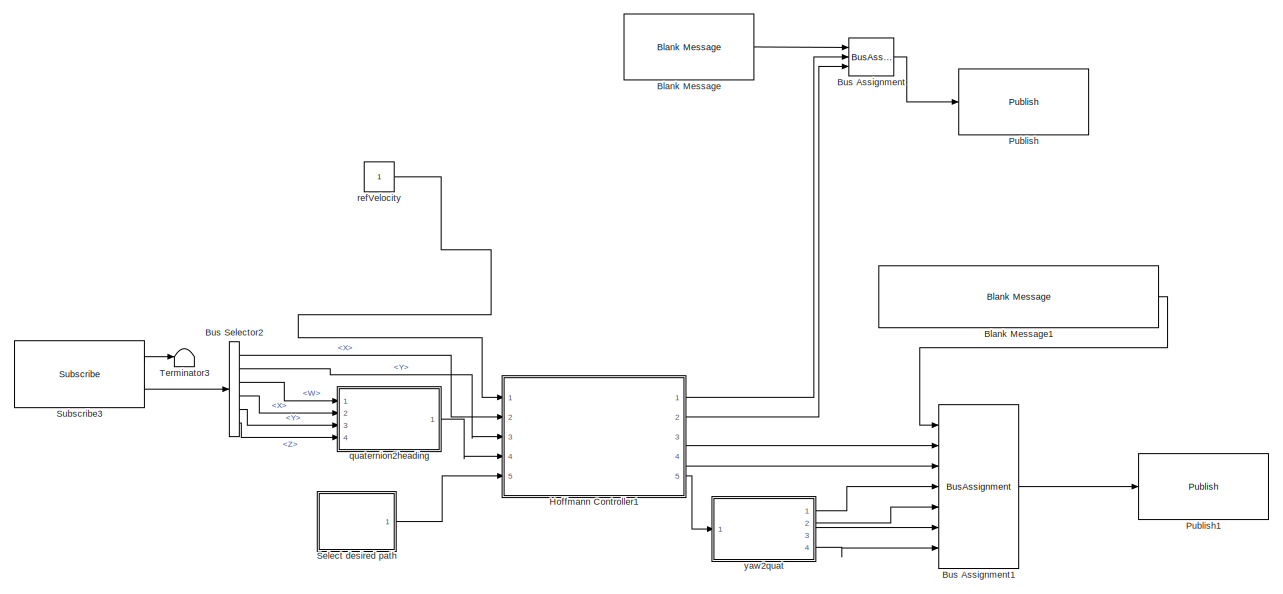
[diagram: root canvas - part 1/2, full width, top band]
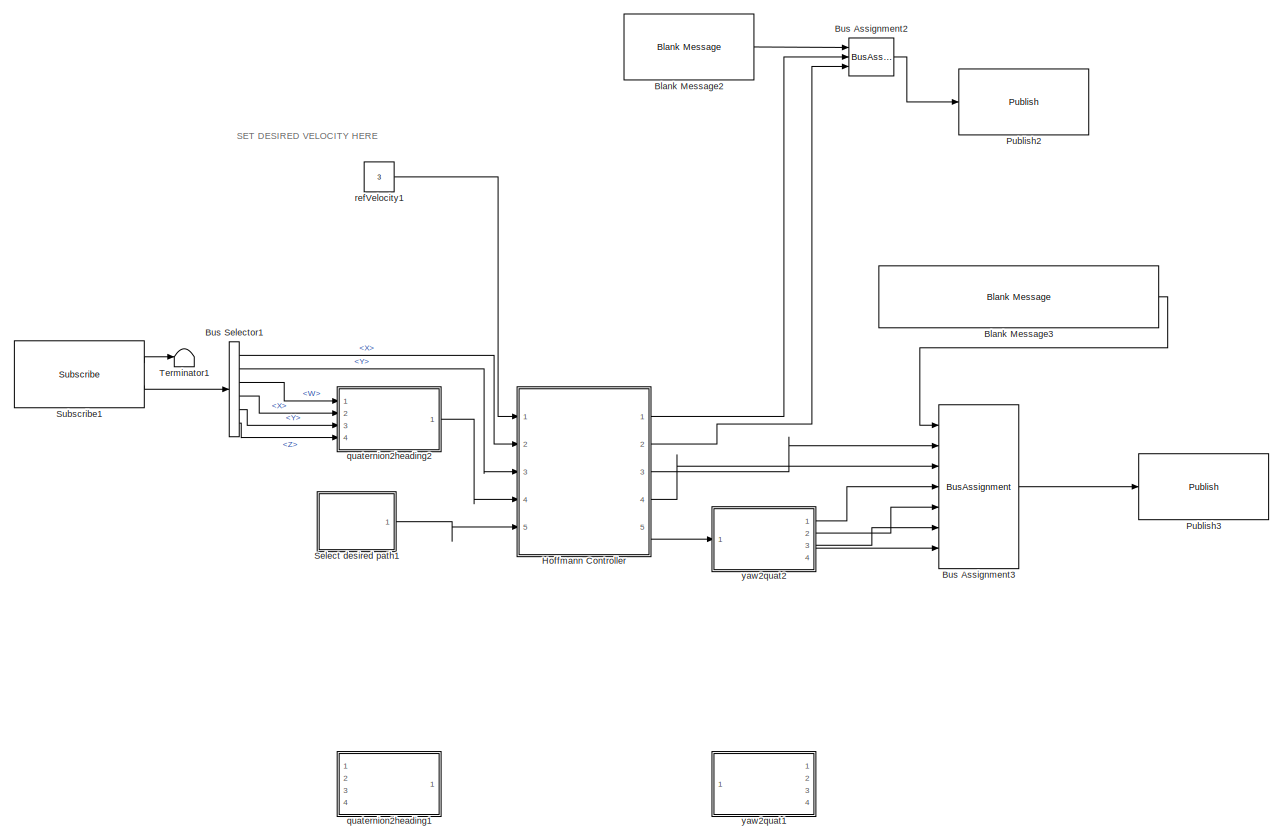
[diagram: root canvas - part 2/2, full width, bottom band]
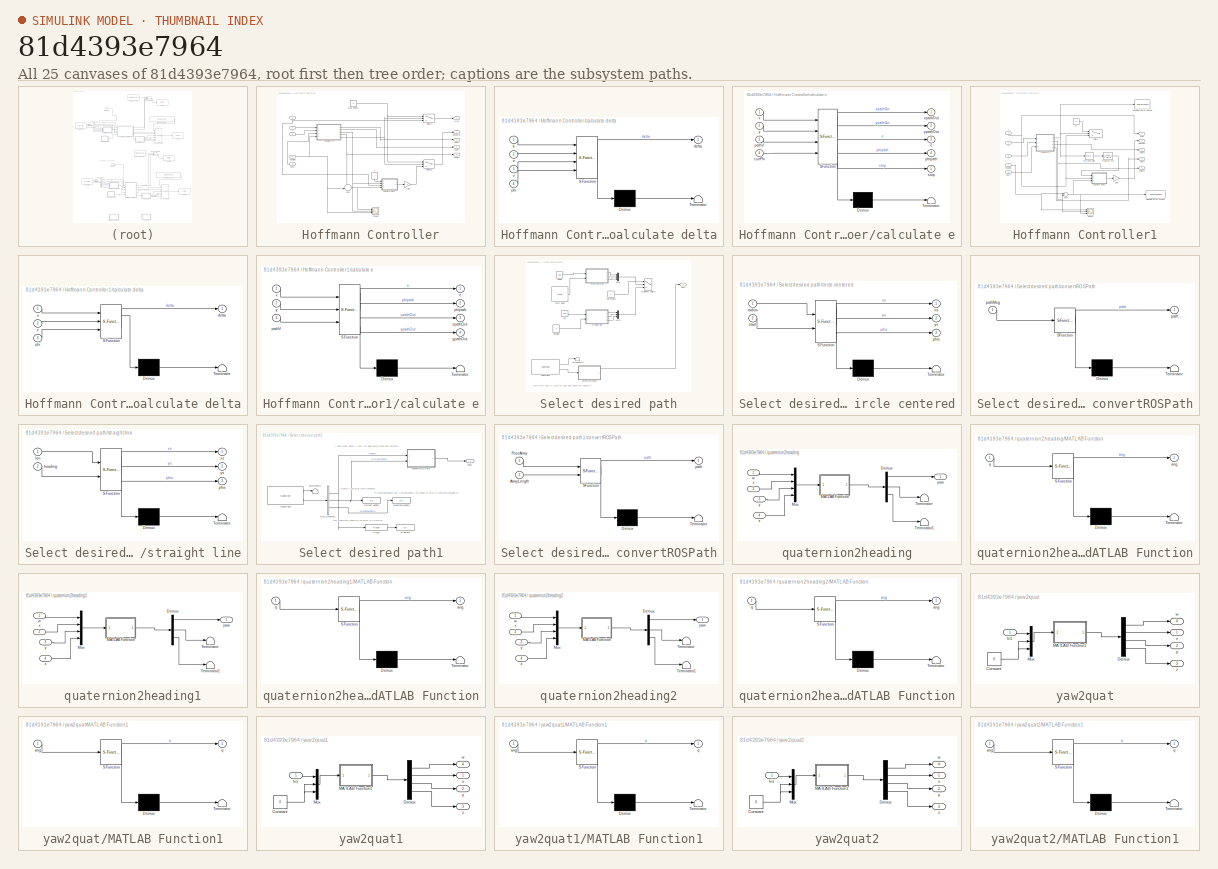
[diagram: thumbnail index - all 25 canvases of the model, root first then tree order]
MODEL slx_81d4393e7964
KIND model
CONFIG AbsTol = auto
CONFIG EnableMultiTasking = on
CONFIG FixedStep = 0.025
CONFIG MaxStep = auto
CONFIG MinStep = auto
CONFIG RelTol = 1e-3
CONFIG SampleTimeConstraint = Unconstrained
CONFIG Solver = FixedStepAuto
CONFIG SolverName = FixedStepAuto
CONFIG StartTime = 0.0
CONFIG StopTime = inf
WORKSPACE source: MAT-file member
WORKSPACE SL_ROS_VariableLengthArrays_MaxSizes: struct (value not decoded)
BLOCK [Reference] Blank Message  REF=robotlib/Blank Message
  Commented = on
  Ports = [0, 1]
  SourceBlock = robotlib/Blank Message
  SourceLibraryInfo = This block requires Robotics System Toolbox
  SourceType = ROS Blank Message
BLOCK [Reference] Blank Message1  REF=robotlib/Blank Message
  Commented = on
  Ports = [0, 1]
  SourceBlock = robotlib/Blank Message
  SourceLibraryInfo = This block requires Robotics System Toolbox
  SourceType = ROS Blank Message
BLOCK [Reference] Blank Message2  REF=robotlib/Blank Message
  Ports = [0, 1]
  SourceBlock = robotlib/Blank Message
  SourceLibraryInfo = This block requires Robotics System Toolbox
  SourceType = ROS Blank Message
BLOCK [Reference] Blank Message3  REF=robotlib/Blank Message
  Commented = on
  Ports = [0, 1]
  SourceBlock = robotlib/Blank Message
  SourceLibraryInfo = This block requires Robotics System Toolbox
  SourceType = ROS Blank Message
BLOCK [BusAssignment] Bus Assignment
  AssignedSignals = Linear.X,Angular.Z
  Commented = on
  Ports = [3, 1]
BLOCK [BusAssignment] Bus Assignment1
  AssignedSignals = Pose.Position.X,Pose.Position.Y,Pose.Orientation.X,Pose.Orientation.Y,Pose.Orientation.Z,Pose.Orientation.W
  Commented = on
  Ports = [7, 1]
BLOCK [BusAssignment] Bus Assignment2
  AssignedSignals = Linear.X,Angular.Z
  Ports = [3, 1]
BLOCK [BusAssignment] Bus Assignment3
  AssignedSignals = Pose.Position.X,Pose.Position.Y,Pose.Orientation.X,Pose.Orientation.Y,Pose.Orientation.Z,Pose.Orientation.W
  Commented = on
  Ports = [7, 1]
BLOCK [BusSelector] Bus Selector1
  OutputSignals = Pose.Pose.Position.X,Pose.Pose.Position.Y,Pose.Pose.Orientation.W,Pose.Pose.Orientation.X,Pose.Pose.Orientation.Y,Pose.Pose.Orientation.Z
  Ports = [1, 6]
BLOCK [BusSelector] Bus Selector2
  Commented = on
  OutputSignals = Pose.Pose.Position.X,Pose.Pose.Position.Y,Pose.Pose.Orientation.W,Pose.Pose.Orientation.X,Pose.Pose.Orientation.Y,Pose.Pose.Orientation.Z
  Ports = [1, 6]
BLOCK [SubSystem] Hoffmann Controller
  Ports = [5, 5]
  RequestExecContextInheritance = off
  Variant = off
BLOCK [Gain] Hoffmann Controller/Gain
  Gain = -1
  OutDataTypeStr = Inherit: Inherit via internal rule
  ParamDataTypeStr = Inherit: Inherit via internal rule
  SaturateOnIntegerOverflow = off
BLOCK [Scope] Hoffmann Controller/Scope
  NumInputPorts = 3
  Ports = [3]
  ScopeSpecificationString = Simulink.scopes.TimeScopeBlockCfg('CurrentConfiguration', extmgr.ConfigurationSet(extmgr.Configuration('Core','General UI',true),extmgr.Configuration('Core','Source UI',true),extmgr.Configuration('Sources','WiredSimulink',true),extmgr.Configuration('Visuals','Time Domain',true,'SerializedDisplays',{struct('MinYLimReal','-2.06685','MaxYLimReal','0.83313','YLabelReal','','MinYLimMag','0.00000','MaxY...<+1764ch>
BLOCK [Sum] Hoffmann Controller/Sum
  IconShape = round
  InputSameDT = off
  Inputs = -|+||
  OutDataTypeStr = Inherit: Inherit via internal rule
  Ports = [2, 1]
  SaturateOnIntegerOverflow = off
BLOCK [Switch] Hoffmann Controller/Switch
  Criteria = u2 ~= 0
  InputSameDT = off
  SaturateOnIntegerOverflow = off
  Threshold = 1000
  ZeroCross = off
BLOCK [Switch] Hoffmann Controller/Switch1
  Criteria = u2 ~= 0
  InputSameDT = off
  SaturateOnIntegerOverflow = off
  Threshold = 1000
  ZeroCross = off
BLOCK [SubSystem] Hoffmann Controller/calculate delta
  ErrorFcn = Stateflow.Translate.translate
  PermitHierarchicalResolution = ExplicitOnly
  Ports = [4, 1]
  RequestExecContextInheritance = off
  SFBlockType = MATLAB Function
  TreatAsAtomicUnit = on
  Variant = off
BLOCK [Demux] Hoffmann Controller/calculate delta/ Demux 
  Outputs = 1
  Ports = [1, 1]
BLOCK [S-Function] Hoffmann Controller/calculate delta/ SFunction 
  EnableBusSupport = on
  FunctionName = sf_sfun
  PortCounts = [4 2]
  Ports = [4, 2]
  SFcnIsStateOwnerBlock = off
  SFunctionDeploymentMode = off
  Tag = Stateflow S-Function hoffmannFollowerWPI 3
BLOCK [Terminator] Hoffmann Controller/calculate delta/ Terminator 
BLOCK [Outport] Hoffmann Controller/calculate delta/delta
  IconDisplay = Port number
BLOCK [Inport] Hoffmann Controller/calculate delta/e
  IconDisplay = Port number
  Port = 2
BLOCK [Inport] Hoffmann Controller/calculate delta/k
  IconDisplay = Port number
BLOCK [Inport] Hoffmann Controller/calculate delta/phi
  IconDisplay = Port number
  Port = 4
BLOCK [Inport] Hoffmann Controller/calculate delta/v
  IconDisplay = Port number
  Port = 3
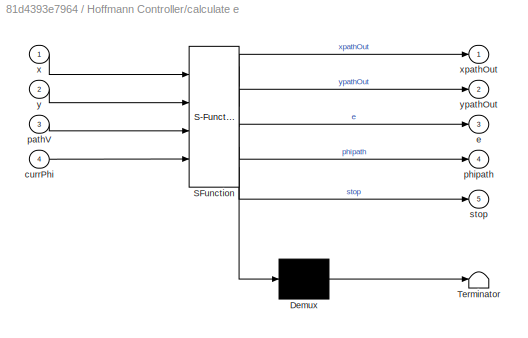
BLOCK [SubSystem] Hoffmann Controller/calculate e
  ErrorFcn = Stateflow.Translate.translate
  PermitHierarchicalResolution = ExplicitOnly
  Ports = [4, 5]
  RequestExecContextInheritance = off
  SFBlockType = MATLAB Function
  TreatAsAtomicUnit = on
  Variant = off
BLOCK [Demux] Hoffmann Controller/calculate e/ Demux 
  Outputs = 1
  Ports = [1, 1]
BLOCK [S-Function] Hoffmann Controller/calculate e/ SFunction 
  EnableBusSupport = on
  FunctionName = sf_sfun
  PortCounts = [4 6]
  Ports = [4, 6]
  SFcnIsStateOwnerBlock = off
  SFunctionDeploymentMode = off
  Tag = Stateflow S-Function hoffmannFollowerWPI 1
BLOCK [Terminator] Hoffmann Controller/calculate e/ Terminator 
BLOCK [Inport] Hoffmann Controller/calculate e/currPhi
  IconDisplay = Port number
  Port = 4
BLOCK [Outport] Hoffmann Controller/calculate e/e
  IconDisplay = Port number
  Port = 3
BLOCK [Inport] Hoffmann Controller/calculate e/pathV
  IconDisplay = Port number
  Port = 3
BLOCK [Outport] Hoffmann Controller/calculate e/phipath
  IconDisplay = Port number
  Port = 4
BLOCK [Outport] Hoffmann Controller/calculate e/stop
  IconDisplay = Port number
  Port = 5
BLOCK [Inport] Hoffmann Controller/calculate e/x
  IconDisplay = Port number
BLOCK [Outport] Hoffmann Controller/calculate e/xpathOut
  IconDisplay = Port number
BLOCK [Inport] Hoffmann Controller/calculate e/y
  IconDisplay = Port number
  Port = 2
BLOCK [Outport] Hoffmann Controller/calculate e/ypathOut
  IconDisplay = Port number
  Port = 2
BLOCK [Outport] Hoffmann Controller/deltaOut
  IconDisplay = Port number
  Port = 2
BLOCK [Inport] Hoffmann Controller/heading
  IconDisplay = Port number
  Port = 4
BLOCK [Constant] Hoffmann Controller/k
  Value = .7
BLOCK [Inport] Hoffmann Controller/path
  IconDisplay = Port number
  Port = 5
BLOCK [Outport] Hoffmann Controller/phipath
  IconDisplay = Port number
  Port = 5
BLOCK [Constant] Hoffmann Controller/stop velocity
  Value = 0
BLOCK [Inport] Hoffmann Controller/v
  IconDisplay = Port number
BLOCK [Outport] Hoffmann Controller/vOut
  IconDisplay = Port number
BLOCK [Inport] Hoffmann Controller/x
  IconDisplay = Port number
  Port = 2
BLOCK [Outport] Hoffmann Controller/xpath
  IconDisplay = Port number
  Port = 3
BLOCK [Inport] Hoffmann Controller/y
  IconDisplay = Port number
  Port = 3
BLOCK [Outport] Hoffmann Controller/ypath
  IconDisplay = Port number
  Port = 4
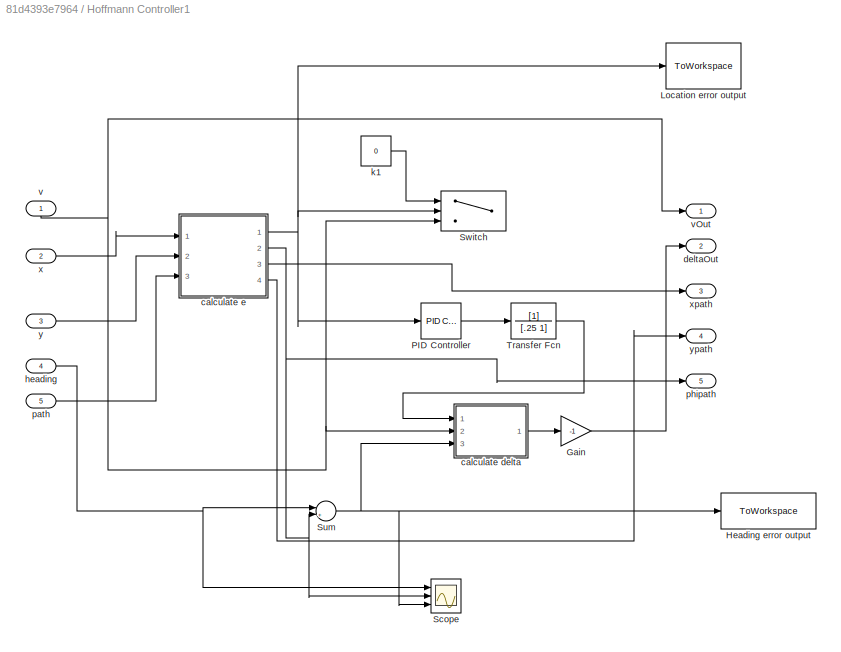
BLOCK [SubSystem] Hoffmann Controller1
  Commented = on
  Ports = [5, 5]
  RequestExecContextInheritance = off
  Variant = off
BLOCK [Gain] Hoffmann Controller1/Gain
  Gain = -1
  OutDataTypeStr = Inherit: Inherit via internal rule
  ParamDataTypeStr = Inherit: Inherit via internal rule
  SaturateOnIntegerOverflow = off
BLOCK [ToWorkspace] Hoffmann Controller1/Heading error output
  FixptAsFi = on
  MaxDataPoints = inf
  Ports = [1]
  SampleTime = -1
  Save2DSignal = 2-D array (concatenate along first dimension)
  SaveFormat = Structure With Time
  VariableName = headingError
BLOCK [ToWorkspace] Hoffmann Controller1/Location error output 
  FixptAsFi = on
  MaxDataPoints = inf
  Ports = [1]
  SampleTime = -1
  Save2DSignal = 2-D array (concatenate along first dimension)
  SaveFormat = Structure With Time
  VariableName = locationError
BLOCK [Reference] Hoffmann Controller1/PID Controller  REF=simulink/Continuous/PID Controller
  Ports = [1, 1]
  SourceBlock = simulink/Continuous/PID Controller
  SourceType = PID 1dof
BLOCK [Scope] Hoffmann Controller1/Scope
  NumInputPorts = 3
  Ports = [3]
  ScopeSpecificationString = Simulink.scopes.TimeScopeBlockCfg('CurrentConfiguration', extmgr.ConfigurationSet(extmgr.Configuration('Core','General UI',true),extmgr.Configuration('Core','Source UI',true),extmgr.Configuration('Sources','WiredSimulink',true,'DataLoggingVariableName','ScopeData1','DataLoggingLimitDataPoints',true,'DataLoggingSaveFormat','Array','DataLoggingDecimation','1','DataLoggingDecimateData',true),extmgr.C...<+1546ch>
BLOCK [Sum] Hoffmann Controller1/Sum
  IconShape = round
  InputSameDT = off
  Inputs = |+-
  OutDataTypeStr = Inherit: Inherit via internal rule
  Ports = [2, 1]
  SaturateOnIntegerOverflow = off
BLOCK [Switch] Hoffmann Controller1/Switch
  Commented = on
  Criteria = u2 > Threshold
  InputSameDT = off
  SaturateOnIntegerOverflow = off
  Threshold = 100000
BLOCK [TransferFcn] Hoffmann Controller1/Transfer Fcn
  Denominator = [.25 1]
BLOCK [SubSystem] Hoffmann Controller1/calculate delta
  ErrorFcn = Stateflow.Translate.translate
  PermitHierarchicalResolution = ExplicitOnly
  Ports = [3, 1]
  RequestExecContextInheritance = off
  SFBlockType = MATLAB Function
  TreatAsAtomicUnit = on
  Variant = off
BLOCK [Demux] Hoffmann Controller1/calculate delta/ Demux 
  Outputs = 1
  Ports = [1, 1]
BLOCK [S-Function] Hoffmann Controller1/calculate delta/ SFunction 
  EnableBusSupport = on
  FunctionName = sf_sfun
  PortCounts = [3 2]
  Ports = [3, 2]
  SFcnIsStateOwnerBlock = off
  SFunctionDeploymentMode = off
  Tag = Stateflow S-Function hoffmannFollowerWPI 8
BLOCK [Terminator] Hoffmann Controller1/calculate delta/ Terminator 
BLOCK [Outport] Hoffmann Controller1/calculate delta/delta
  IconDisplay = Port number
BLOCK [Inport] Hoffmann Controller1/calculate delta/phi
  IconDisplay = Port number
  Port = 3
BLOCK [Inport] Hoffmann Controller1/calculate delta/u
  IconDisplay = Port number
BLOCK [Inport] Hoffmann Controller1/calculate delta/v
  IconDisplay = Port number
  Port = 2
BLOCK [SubSystem] Hoffmann Controller1/calculate e
  ErrorFcn = Stateflow.Translate.translate
  PermitHierarchicalResolution = ExplicitOnly
  Ports = [3, 4]
  RequestExecContextInheritance = off
  SFBlockType = MATLAB Function
  TreatAsAtomicUnit = on
  Variant = off
BLOCK [Demux] Hoffmann Controller1/calculate e/ Demux 
  Outputs = 1
  Ports = [1, 1]
BLOCK [S-Function] Hoffmann Controller1/calculate e/ SFunction 
  EnableBusSupport = on
  FunctionName = sf_sfun
  PortCounts = [3 5]
  Ports = [3, 5]
  SFcnIsStateOwnerBlock = off
  SFunctionDeploymentMode = off
  Tag = Stateflow S-Function hoffmannFollowerWPI 9
BLOCK [Terminator] Hoffmann Controller1/calculate e/ Terminator 
BLOCK [Outport] Hoffmann Controller1/calculate e/e
  IconDisplay = Port number
BLOCK [Inport] Hoffmann Controller1/calculate e/pathV
  IconDisplay = Port number
  Port = 3
BLOCK [Outport] Hoffmann Controller1/calculate e/phipath
  IconDisplay = Port number
  Port = 2
BLOCK [Inport] Hoffmann Controller1/calculate e/x
  IconDisplay = Port number
BLOCK [Outport] Hoffmann Controller1/calculate e/xpathOut
  IconDisplay = Port number
  Port = 3
BLOCK [Inport] Hoffmann Controller1/calculate e/y
  IconDisplay = Port number
  Port = 2
BLOCK [Outport] Hoffmann Controller1/calculate e/ypathOut
  IconDisplay = Port number
  Port = 4
BLOCK [Outport] Hoffmann Controller1/deltaOut
  IconDisplay = Port number
  Port = 2
BLOCK [Inport] Hoffmann Controller1/heading
  IconDisplay = Port number
  Port = 4
BLOCK [Constant] Hoffmann Controller1/k1
  Commented = on
  Value = 0
BLOCK [Inport] Hoffmann Controller1/path
  IconDisplay = Port number
  Port = 5
BLOCK [Outport] Hoffmann Controller1/phipath
  IconDisplay = Port number
  Port = 5
BLOCK [Inport] Hoffmann Controller1/v
  IconDisplay = Port number
BLOCK [Outport] Hoffmann Controller1/vOut
  IconDisplay = Port number
BLOCK [Inport] Hoffmann Controller1/x
  IconDisplay = Port number
  Port = 2
BLOCK [Outport] Hoffmann Controller1/xpath
  IconDisplay = Port number
  Port = 3
BLOCK [Inport] Hoffmann Controller1/y
  IconDisplay = Port number
  Port = 3
BLOCK [Outport] Hoffmann Controller1/ypath
  IconDisplay = Port number
  Port = 4
BLOCK [Reference] Publish  REF=robotlib/Publish
  Commented = on
  Ports = [1]
  SourceBlock = robotlib/Publish
  SourceLibraryInfo = This block requires Robotics System Toolbox
  SourceType = ROS Publish
BLOCK [Reference] Publish1  REF=robotlib/Publish
  Commented = on
  Ports = [1]
  SourceBlock = robotlib/Publish
  SourceLibraryInfo = This block requires Robotics System Toolbox
  SourceType = ROS Publish
BLOCK [Reference] Publish2  REF=robotlib/Publish
  Ports = [1]
  SourceBlock = robotlib/Publish
  SourceLibraryInfo = This block requires Robotics System Toolbox
  SourceType = ROS Publish
BLOCK [Reference] Publish3  REF=robotlib/Publish
  Commented = on
  Ports = [1]
  SourceBlock = robotlib/Publish
  SourceLibraryInfo = This block requires Robotics System Toolbox
  SourceType = ROS Publish
BLOCK [SubSystem] Select desired path
  Commented = on
  Ports = [0, 1]
  RequestExecContextInheritance = off
  Variant = off
BLOCK [MultiPortSwitch] Select desired path/Multiport Switch
  Commented = on
  InputSameDT = off
  Inputs = 2
  Ports = [3, 1]
  SaturateOnIntegerOverflow = off
BLOCK [Mux] Select desired path/Mux
  Commented = on
  DisplayOption = bar
  Inputs = 3
  Ports = [3, 1]
BLOCK [Mux] Select desired path/Mux2
  Commented = on
  DisplayOption = bar
  Inputs = 3
  Ports = [3, 1]
BLOCK [Reference] Select desired path/Subscribe1  REF=robotlib/Subscribe
  Ports = [0, 2]
  SourceBlock = robotlib/Subscribe
  SourceLibraryInfo = This block requires Robotics System Toolbox
  SourceType = ROS Subscribe
BLOCK [Terminator] Select desired path/Terminator3
BLOCK [SubSystem] Select desired path/circle centered
  Commented = on
  ErrorFcn = Stateflow.Translate.translate
  PermitHierarchicalResolution = ExplicitOnly
  Ports = [2, 3]
  RequestExecContextInheritance = off
  SFBlockType = MATLAB Function
  TreatAsAtomicUnit = on
  Variant = off
BLOCK [Demux] Select desired path/circle centered/ Demux 
  Outputs = 1
  Ports = [1, 1]
BLOCK [S-Function] Select desired path/circle centered/ SFunction 
  EnableBusSupport = on
  FunctionName = sf_sfun
  PortCounts = [2 4]
  Ports = [2, 4]
  SFcnIsStateOwnerBlock = off
  SFunctionDeploymentMode = off
  Tag = Stateflow S-Function hoffmannFollowerWPI 4
BLOCK [Terminator] Select desired path/circle centered/ Terminator 
BLOCK [Outport] Select desired path/circle centered/phis
  IconDisplay = Port number
  Port = 3
BLOCK [Inport] Select desired path/circle centered/radius
  IconDisplay = Port number
BLOCK [Inport] Select desired path/circle centered/start
  IconDisplay = Port number
  Port = 2
BLOCK [Outport] Select desired path/circle centered/xs
  IconDisplay = Port number
BLOCK [Outport] Select desired path/circle centered/ys
  IconDisplay = Port number
  Port = 2
BLOCK [SubSystem] Select desired path/convertROSPath
  ErrorFcn = Stateflow.Translate.translate
  PermitHierarchicalResolution = ExplicitOnly
  Ports = [1, 1]
  RequestExecContextInheritance = off
  SFBlockType = MATLAB Function
  TreatAsAtomicUnit = on
  Variant = off
BLOCK [Demux] Select desired path/convertROSPath/ Demux 
  Outputs = 1
  Ports = [1, 1]
BLOCK [S-Function] Select desired path/convertROSPath/ SFunction 
  EnableBusSupport = on
  FunctionName = sf_sfun
  PortCounts = [1 2]
  Ports = [1, 2]
  SFcnIsStateOwnerBlock = off
  SFunctionDeploymentMode = off
  Tag = Stateflow S-Function hoffmannFollowerWPI 6
BLOCK [Terminator] Select desired path/convertROSPath/ Terminator 
BLOCK [Outport] Select desired path/convertROSPath/path
  IconDisplay = Port number
BLOCK [Inport] Select desired path/convertROSPath/pathMsg
  IconDisplay = Port number
BLOCK [Constant] Select desired path/heading
  Commented = on
  Value = 0
BLOCK [Constant] Select desired path/len
  Commented = on
  Value = 36.6
BLOCK [Outport] Select desired path/path
  IconDisplay = Port number
BLOCK [Constant] Select desired path/pathChoice 
  Commented = on
BLOCK [Constant] Select desired path/radius
  Commented = on
  Value = 36.6
BLOCK [Constant] Select desired path/start point
  Commented = on
  Value = [0 0]
BLOCK [SubSystem] Select desired path/straight line
  Commented = on
  ErrorFcn = Stateflow.Translate.translate
  PermitHierarchicalResolution = ExplicitOnly
  Ports = [2, 3]
  RequestExecContextInheritance = off
  SFBlockType = MATLAB Function
  TreatAsAtomicUnit = on
  Variant = off
BLOCK [Demux] Select desired path/straight line/ Demux 
  Outputs = 1
  Ports = [1, 1]
BLOCK [S-Function] Select desired path/straight line/ SFunction 
  EnableBusSupport = on
  FunctionName = sf_sfun
  PortCounts = [2 4]
  Ports = [2, 4]
  SFcnIsStateOwnerBlock = off
  SFunctionDeploymentMode = off
  Tag = Stateflow S-Function hoffmannFollowerWPI 5
BLOCK [Terminator] Select desired path/straight line/ Terminator 
BLOCK [Inport] Select desired path/straight line/heading
  IconDisplay = Port number
  Port = 2
BLOCK [Inport] Select desired path/straight line/len
  IconDisplay = Port number
BLOCK [Outport] Select desired path/straight line/phis
  IconDisplay = Port number
  Port = 3
BLOCK [Outport] Select desired path/straight line/xs
  IconDisplay = Port number
BLOCK [Outport] Select desired path/straight line/ys
  IconDisplay = Port number
  Port = 2
BLOCK [SubSystem] Select desired path1
  Ports = [0, 1]
  RequestExecContextInheritance = off
  Variant = off
BLOCK [BusSelector] Select desired path1/Bus Selector1
  OutputSignals = Poses,Poses_SL_Info.CurrentLength,Poses_SL_Info.ReceivedLength
  Ports = [1, 3]
BLOCK [Display] Select desired path1/Current Length
  Commented = on
  Decimation = 1
  Ports = [1]
BLOCK [Display] Select desired path1/Display3
  Commented = on
  Decimation = 1
  Ports = [1]
BLOCK [Probe] Select desired path1/Probe
  Commented = on
  Ports = [1, 1]
  ProbeComplexSignal = off
  ProbeSampleTime = off
  ProbeSignalDimensions = on
  ProbeWidth = off
BLOCK [Display] Select desired path1/Received Length
  Commented = on
  Decimation = 1
  Ports = [1]
BLOCK [Reference] Select desired path1/Subscribe2  REF=robotlib/Subscribe
  Ports = [0, 2]
  SourceBlock = robotlib/Subscribe
  SourceLibraryInfo = This block requires Robotics System Toolbox
  SourceType = ROS Subscribe
BLOCK [Terminator] Select desired path1/Terminator1
BLOCK [SubSystem] Select desired path1/convertROSPath
  ErrorFcn = Stateflow.Translate.translate
  PermitHierarchicalResolution = ExplicitOnly
  Ports = [2, 1]
  RequestExecContextInheritance = off
  SFBlockType = MATLAB Function
  TreatAsAtomicUnit = on
  Variant = off
BLOCK [Demux] Select desired path1/convertROSPath/ Demux 
  Outputs = 1
  Ports = [1, 1]
BLOCK [S-Function] Select desired path1/convertROSPath/ SFunction 
  EnableBusSupport = on
  FunctionName = sf_sfun
  PortCounts = [2 2]
  Ports = [2, 2]
  SFcnIsStateOwnerBlock = off
  SFunctionDeploymentMode = off
  Tag = Stateflow S-Function hoffmannFollowerWPI 13
BLOCK [Terminator] Select desired path1/convertROSPath/ Terminator 
BLOCK [Inport] Select desired path1/convertROSPath/ArrayLength
  IconDisplay = Port number
  Port = 2
BLOCK [Inport] Select desired path1/convertROSPath/PoseArray
  IconDisplay = Port number
BLOCK [Outport] Select desired path1/convertROSPath/path
  IconDisplay = Port number
BLOCK [Outport] Select desired path1/path
  IconDisplay = Port number
BLOCK [Reference] Subscribe1  REF=robotlib/Subscribe
  Ports = [0, 2]
  SourceBlock = robotlib/Subscribe
  SourceLibraryInfo = This block requires Robotics System Toolbox
  SourceType = ROS Subscribe
BLOCK [Reference] Subscribe3  REF=robotlib/Subscribe
  Commented = on
  Ports = [0, 2]
  SourceBlock = robotlib/Subscribe
  SourceLibraryInfo = This block requires Robotics System Toolbox
  SourceType = ROS Subscribe
BLOCK [Terminator] Terminator1
BLOCK [Terminator] Terminator3
  Commented = on
BLOCK [SubSystem] quaternion2heading
  Commented = on
  Ports = [4, 1]
  RequestExecContextInheritance = off
  Variant = off
BLOCK [Demux] quaternion2heading/Demux
  DisplayOption = bar
  Outputs = 3
  Ports = [1, 3]
BLOCK [SubSystem] quaternion2heading/MATLAB Function
  ErrorFcn = Stateflow.Translate.translate
  PermitHierarchicalResolution = ExplicitOnly
  Ports = [1, 1]
  RequestExecContextInheritance = off
  SFBlockType = MATLAB Function
  TreatAsAtomicUnit = on
  Variant = off
BLOCK [Demux] quaternion2heading/MATLAB Function/ Demux 
  Outputs = 1
  Ports = [1, 1]
BLOCK [S-Function] quaternion2heading/MATLAB Function/ SFunction 
  EnableBusSupport = on
  FunctionName = sf_sfun
  PortCounts = [1 2]
  Ports = [1, 2]
  SFcnIsStateOwnerBlock = off
  SFunctionDeploymentMode = off
  Tag = Stateflow S-Function hoffmannFollowerWPI 2
BLOCK [Terminator] quaternion2heading/MATLAB Function/ Terminator 
BLOCK [Outport] quaternion2heading/MATLAB Function/ang
  IconDisplay = Port number
BLOCK [Inport] quaternion2heading/MATLAB Function/q
  IconDisplay = Port number
BLOCK [Mux] quaternion2heading/Mux
  DisplayOption = bar
  Ports = [4, 1]
BLOCK [Terminator] quaternion2heading/Terminator
BLOCK [Terminator] quaternion2heading/Terminator1
BLOCK [Inport] quaternion2heading/w
  IconDisplay = Port number
BLOCK [Inport] quaternion2heading/x
  IconDisplay = Port number
  Port = 2
BLOCK [Inport] quaternion2heading/y
  IconDisplay = Port number
  Port = 3
BLOCK [Outport] quaternion2heading/yaw
  IconDisplay = Port number
BLOCK [Inport] quaternion2heading/z
  IconDisplay = Port number
  Port = 4
BLOCK [SubSystem] quaternion2heading1
  Commented = on
  Ports = [4, 1]
  RequestExecContextInheritance = off
  Variant = off
BLOCK [Demux] quaternion2heading1/Demux
  DisplayOption = bar
  Outputs = 3
  Ports = [1, 3]
BLOCK [SubSystem] quaternion2heading1/MATLAB Function
  ErrorFcn = Stateflow.Translate.translate
  PermitHierarchicalResolution = ExplicitOnly
  Ports = [1, 1]
  RequestExecContextInheritance = off
  SFBlockType = MATLAB Function
  TreatAsAtomicUnit = on
  Variant = off
BLOCK [Demux] quaternion2heading1/MATLAB Function/ Demux 
  Outputs = 1
  Ports = [1, 1]
BLOCK [S-Function] quaternion2heading1/MATLAB Function/ SFunction 
  EnableBusSupport = on
  FunctionName = sf_sfun
  PortCounts = [1 2]
  Ports = [1, 2]
  SFcnIsStateOwnerBlock = off
  SFunctionDeploymentMode = off
  Tag = Stateflow S-Function hoffmannFollowerWPI 15
BLOCK [Terminator] quaternion2heading1/MATLAB Function/ Terminator 
BLOCK [Outport] quaternion2heading1/MATLAB Function/ang
  IconDisplay = Port number
BLOCK [Inport] quaternion2heading1/MATLAB Function/q
  IconDisplay = Port number
BLOCK [Mux] quaternion2heading1/Mux
  DisplayOption = bar
  Ports = [4, 1]
BLOCK [Terminator] quaternion2heading1/Terminator
BLOCK [Terminator] quaternion2heading1/Terminator1
BLOCK [Inport] quaternion2heading1/w
  IconDisplay = Port number
BLOCK [Inport] quaternion2heading1/x
  IconDisplay = Port number
  Port = 2
BLOCK [Inport] quaternion2heading1/y
  IconDisplay = Port number
  Port = 3
BLOCK [Outport] quaternion2heading1/yaw
  IconDisplay = Port number
BLOCK [Inport] quaternion2heading1/z
  IconDisplay = Port number
  Port = 4
BLOCK [SubSystem] quaternion2heading2
  Ports = [4, 1]
  RequestExecContextInheritance = off
  Variant = off
BLOCK [Demux] quaternion2heading2/Demux
  DisplayOption = bar
  Outputs = 3
  Ports = [1, 3]
BLOCK [SubSystem] quaternion2heading2/MATLAB Function
  ErrorFcn = Stateflow.Translate.translate
  PermitHierarchicalResolution = ExplicitOnly
  Ports = [1, 1]
  RequestExecContextInheritance = off
  SFBlockType = MATLAB Function
  TreatAsAtomicUnit = on
  Variant = off
BLOCK [Demux] quaternion2heading2/MATLAB Function/ Demux 
  Outputs = 1
  Ports = [1, 1]
BLOCK [S-Function] quaternion2heading2/MATLAB Function/ SFunction 
  EnableBusSupport = on
  FunctionName = sf_sfun
  PortCounts = [1 2]
  Ports = [1, 2]
  SFcnIsStateOwnerBlock = off
  SFunctionDeploymentMode = off
  Tag = Stateflow S-Function hoffmannFollowerWPI 10
BLOCK [Terminator] quaternion2heading2/MATLAB Function/ Terminator 
BLOCK [Outport] quaternion2heading2/MATLAB Function/ang
  IconDisplay = Port number
BLOCK [Inport] quaternion2heading2/MATLAB Function/q
  IconDisplay = Port number
BLOCK [Mux] quaternion2heading2/Mux
  DisplayOption = bar
  Ports = [4, 1]
BLOCK [Terminator] quaternion2heading2/Terminator
BLOCK [Terminator] quaternion2heading2/Terminator1
BLOCK [Inport] quaternion2heading2/w
  IconDisplay = Port number
BLOCK [Inport] quaternion2heading2/x
  IconDisplay = Port number
  Port = 2
BLOCK [Inport] quaternion2heading2/y
  IconDisplay = Port number
  Port = 3
BLOCK [Outport] quaternion2heading2/yaw
  IconDisplay = Port number
BLOCK [Inport] quaternion2heading2/z
  IconDisplay = Port number
  Port = 4
BLOCK [Constant] refVelocity
  Commented = on
BLOCK [Constant] refVelocity1
  Value = 3
BLOCK [SubSystem] yaw2quat
  Commented = on
  Ports = [1, 4]
  RequestExecContextInheritance = off
  Variant = off
BLOCK [Constant] yaw2quat/Constant
  Value = 0
BLOCK [Demux] yaw2quat/Demux
  DisplayOption = bar
  Ports = [1, 4]
BLOCK [Inport] yaw2quat/In1
  IconDisplay = Port number
BLOCK [SubSystem] yaw2quat/MATLAB Function1
  ErrorFcn = Stateflow.Translate.translate
  PermitHierarchicalResolution = ExplicitOnly
  Ports = [1, 1]
  RequestExecContextInheritance = off
  SFBlockType = MATLAB Function
  TreatAsAtomicUnit = on
  Variant = off
BLOCK [Demux] yaw2quat/MATLAB Function1/ Demux 
  Outputs = 1
  Ports = [1, 1]
BLOCK [S-Function] yaw2quat/MATLAB Function1/ SFunction 
  EnableBusSupport = on
  FunctionName = sf_sfun
  PortCounts = [1 2]
  Ports = [1, 2]
  SFcnIsStateOwnerBlock = off
  SFunctionDeploymentMode = off
  Tag = Stateflow S-Function hoffmannFollowerWPI 7
BLOCK [Terminator] yaw2quat/MATLAB Function1/ Terminator 
BLOCK [Inport] yaw2quat/MATLAB Function1/ang
  IconDisplay = Port number
BLOCK [Outport] yaw2quat/MATLAB Function1/q
  IconDisplay = Port number
BLOCK [Mux] yaw2quat/Mux
  DisplayOption = bar
  Inputs = 3
  Ports = [3, 1]
BLOCK [Outport] yaw2quat/w
  IconDisplay = Port number
  Port = 4
BLOCK [Outport] yaw2quat/x
  IconDisplay = Port number
BLOCK [Outport] yaw2quat/y
  IconDisplay = Port number
  Port = 2
BLOCK [Outport] yaw2quat/z
  IconDisplay = Port number
  Port = 3
BLOCK [SubSystem] yaw2quat1
  Commented = on
  Ports = [1, 4]
  RequestExecContextInheritance = off
  Variant = off
BLOCK [Constant] yaw2quat1/Constant
  Value = 0
BLOCK [Demux] yaw2quat1/Demux
  DisplayOption = bar
  Ports = [1, 4]
BLOCK [Inport] yaw2quat1/In1
  IconDisplay = Port number
BLOCK [SubSystem] yaw2quat1/MATLAB Function1
  ErrorFcn = Stateflow.Translate.translate
  PermitHierarchicalResolution = ExplicitOnly
  Ports = [1, 1]
  RequestExecContextInheritance = off
  SFBlockType = MATLAB Function
  TreatAsAtomicUnit = on
  Variant = off
BLOCK [Demux] yaw2quat1/MATLAB Function1/ Demux 
  Outputs = 1
  Ports = [1, 1]
BLOCK [S-Function] yaw2quat1/MATLAB Function1/ SFunction 
  EnableBusSupport = on
  FunctionName = sf_sfun
  PortCounts = [1 2]
  Ports = [1, 2]
  SFcnIsStateOwnerBlock = off
  SFunctionDeploymentMode = off
  Tag = Stateflow S-Function hoffmannFollowerWPI 16
BLOCK [Terminator] yaw2quat1/MATLAB Function1/ Terminator 
BLOCK [Inport] yaw2quat1/MATLAB Function1/ang
  IconDisplay = Port number
BLOCK [Outport] yaw2quat1/MATLAB Function1/q
  IconDisplay = Port number
BLOCK [Mux] yaw2quat1/Mux
  DisplayOption = bar
  Inputs = 3
  Ports = [3, 1]
BLOCK [Outport] yaw2quat1/w
  IconDisplay = Port number
  Port = 4
BLOCK [Outport] yaw2quat1/x
  IconDisplay = Port number
BLOCK [Outport] yaw2quat1/y
  IconDisplay = Port number
  Port = 2
BLOCK [Outport] yaw2quat1/z
  IconDisplay = Port number
  Port = 3
BLOCK [SubSystem] yaw2quat2
  Commented = on
  Ports = [1, 4]
  RequestExecContextInheritance = off
  Variant = off
BLOCK [Constant] yaw2quat2/Constant
  Value = 0
BLOCK [Demux] yaw2quat2/Demux
  DisplayOption = bar
  Ports = [1, 4]
BLOCK [Inport] yaw2quat2/In1
  IconDisplay = Port number
BLOCK [SubSystem] yaw2quat2/MATLAB Function1
  ErrorFcn = Stateflow.Translate.translate
  PermitHierarchicalResolution = ExplicitOnly
  Ports = [1, 1]
  RequestExecContextInheritance = off
  SFBlockType = MATLAB Function
  TreatAsAtomicUnit = on
  Variant = off
BLOCK [Demux] yaw2quat2/MATLAB Function1/ Demux 
  Outputs = 1
  Ports = [1, 1]
BLOCK [S-Function] yaw2quat2/MATLAB Function1/ SFunction 
  EnableBusSupport = on
  FunctionName = sf_sfun
  PortCounts = [1 2]
  Ports = [1, 2]
  SFcnIsStateOwnerBlock = off
  SFunctionDeploymentMode = off
  Tag = Stateflow S-Function hoffmannFollowerWPI 11
BLOCK [Terminator] yaw2quat2/MATLAB Function1/ Terminator 
BLOCK [Inport] yaw2quat2/MATLAB Function1/ang
  IconDisplay = Port number
BLOCK [Outport] yaw2quat2/MATLAB Function1/q
  IconDisplay = Port number
BLOCK [Mux] yaw2quat2/Mux
  DisplayOption = bar
  Inputs = 3
  Ports = [3, 1]
BLOCK [Outport] yaw2quat2/w
  IconDisplay = Port number
  Port = 4
BLOCK [Outport] yaw2quat2/x
  IconDisplay = Port number
BLOCK [Outport] yaw2quat2/y
  IconDisplay = Port number
  Port = 2
BLOCK [Outport] yaw2quat2/z
  IconDisplay = Port number
  Port = 3
ANNOTATION (root): SET DESIRED VELOCITY HERE
ANNOTATION Select desired path: A path must have [x y phi] for each point along the trajectory
ANNOTATION Select desired path1: Check if the array was truncated
ANNOTATION Select desired path1: Get maximum length of the array in Simulink
ANNOTATION Select desired path1: If ReceivedLength > CurrentLength, the length of array in received message was greater than the maximum allowed
ANNOTATION Select desired path1: A path must have [x y phi] for each point along the trajectory
LINE Blank Message1:1 -> Bus Assignment1:1
LINE Blank Message2:1 -> Bus Assignment2:1
LINE Blank Message3:1 -> Bus Assignment3:1
LINE Blank Message:1 -> Bus Assignment:1
LINE Bus Assignment1:1 -> Publish1:1
LINE Bus Assignment2:1 -> Publish2:1
LINE Bus Assignment3:1 -> Publish3:1
LINE Bus Assignment:1 -> Publish:1
LINE Bus Selector1:1 -> Hoffmann Controller:2
LINE Bus Selector1:2 -> Hoffmann Controller:3
LINE Bus Selector1:3 -> quaternion2heading2:1
LINE Bus Selector1:4 -> quaternion2heading2:2
LINE Bus Selector1:5 -> quaternion2heading2:3
LINE Bus Selector1:6 -> quaternion2heading2:4
LINE Bus Selector2:1 -> Hoffmann Controller1:2
LINE Bus Selector2:2 -> Hoffmann Controller1:3
LINE Bus Selector2:3 -> quaternion2heading:1
LINE Bus Selector2:4 -> quaternion2heading:2
LINE Bus Selector2:5 -> quaternion2heading:3
LINE Bus Selector2:6 -> quaternion2heading:4
LINE Hoffmann Controller/Gain:1 -> Hoffmann Controller/Switch1:3
NET Hoffmann Controller/Sum:1 -> Hoffmann Controller/Scope:1, Hoffmann Controller/calculate delta:4
LINE Hoffmann Controller/Switch1:1 -> Hoffmann Controller/deltaOut:1
LINE Hoffmann Controller/Switch:1 -> Hoffmann Controller/vOut:1
LINE Hoffmann Controller/calculate delta:1 -> Hoffmann Controller/Gain:1
LINE Hoffmann Controller/calculate e:1 -> Hoffmann Controller/xpath:1
LINE Hoffmann Controller/calculate e:2 -> Hoffmann Controller/ypath:1
NET Hoffmann Controller/calculate e:3 -> Hoffmann Controller/Scope:2, Hoffmann Controller/calculate delta:2
NET Hoffmann Controller/calculate e:4 -> Hoffmann Controller/Sum:1, Hoffmann Controller/phipath:1
NET Hoffmann Controller/calculate e:5 -> Hoffmann Controller/Switch1:2, Hoffmann Controller/Switch:2
NET Hoffmann Controller/heading:1 -> Hoffmann Controller/Scope:3, Hoffmann Controller/Sum:2, Hoffmann Controller/calculate e:4
LINE Hoffmann Controller/k:1 -> Hoffmann Controller/calculate delta:1
LINE Hoffmann Controller/path:1 -> Hoffmann Controller/calculate e:3
NET Hoffmann Controller/stop velocity:1 -> Hoffmann Controller/Switch1:1, Hoffmann Controller/Switch:1
NET Hoffmann Controller/v:1 -> Hoffmann Controller/Switch:3, Hoffmann Controller/calculate delta:3
LINE Hoffmann Controller/x:1 -> Hoffmann Controller/calculate e:1
LINE Hoffmann Controller/y:1 -> Hoffmann Controller/calculate e:2
LINE Hoffmann Controller1/Gain:1 -> Hoffmann Controller1/deltaOut:1
LINE Hoffmann Controller1/PID Controller:1 -> Hoffmann Controller1/Transfer Fcn:1
NET Hoffmann Controller1/Sum:1 -> Hoffmann Controller1/Heading error output:1, Hoffmann Controller1/Scope:3, Hoffmann Controller1/calculate delta:3
LINE Hoffmann Controller1/Transfer Fcn:1 -> Hoffmann Controller1/calculate delta:1
LINE Hoffmann Controller1/calculate delta:1 -> Hoffmann Controller1/Gain:1
NET Hoffmann Controller1/calculate e:1 -> Hoffmann Controller1/Location error output :1, Hoffmann Controller1/PID Controller:1, Hoffmann Controller1/Switch:2
NET Hoffmann Controller1/calculate e:2 -> Hoffmann Controller1/Scope:2, Hoffmann Controller1/Sum:2, Hoffmann Controller1/phipath:1
LINE Hoffmann Controller1/calculate e:3 -> Hoffmann Controller1/xpath:1
LINE Hoffmann Controller1/calculate e:4 -> Hoffmann Controller1/ypath:1
NET Hoffmann Controller1/heading:1 -> Hoffmann Controller1/Scope:1, Hoffmann Controller1/Sum:1
LINE Hoffmann Controller1/k1:1 -> Hoffmann Controller1/Switch:1
LINE Hoffmann Controller1/path:1 -> Hoffmann Controller1/calculate e:3
NET Hoffmann Controller1/v:1 -> Hoffmann Controller1/Switch:3, Hoffmann Controller1/calculate delta:2, Hoffmann Controller1/vOut:1
LINE Hoffmann Controller1/x:1 -> Hoffmann Controller1/calculate e:1
LINE Hoffmann Controller1/y:1 -> Hoffmann Controller1/calculate e:2
LINE Hoffmann Controller1:1 -> Bus Assignment:2
LINE Hoffmann Controller1:2 -> Bus Assignment:3
LINE Hoffmann Controller1:3 -> Bus Assignment1:2
LINE Hoffmann Controller1:4 -> Bus Assignment1:3
LINE Hoffmann Controller1:5 -> yaw2quat:1
LINE Hoffmann Controller:1 -> Bus Assignment2:2
LINE Hoffmann Controller:2 -> Bus Assignment2:3
LINE Hoffmann Controller:3 -> Bus Assignment3:2
LINE Hoffmann Controller:4 -> Bus Assignment3:3
LINE Hoffmann Controller:5 -> yaw2quat2:1
LINE Select desired path/Mux2:1 -> Select desired path/Multiport Switch:3
LINE Select desired path/Mux:1 -> Select desired path/Multiport Switch:2
LINE Select desired path/Subscribe1:1 -> Select desired path/Terminator3:1
LINE Select desired path/Subscribe1:2 -> Select desired path/convertROSPath:1
LINE Select desired path/circle centered:1 -> Select desired path/Mux:1
LINE Select desired path/circle centered:2 -> Select desired path/Mux:2
LINE Select desired path/circle centered:3 -> Select desired path/Mux:3
LINE Select desired path/convertROSPath:1 -> Select desired path/path:1
LINE Select desired path/heading:1 -> Select desired path/straight line:2
LINE Select desired path/len:1 -> Select desired path/straight line:1
LINE Select desired path/pathChoice :1 -> Select desired path/Multiport Switch:1
LINE Select desired path/radius:1 -> Select desired path/circle centered:1
LINE Select desired path/start point:1 -> Select desired path/circle centered:2
LINE Select desired path/straight line:1 -> Select desired path/Mux2:1
LINE Select desired path/straight line:2 -> Select desired path/Mux2:2
LINE Select desired path/straight line:3 -> Select desired path/Mux2:3
NET Select desired path1/Bus Selector1:1 -> Select desired path1/Probe:1, Select desired path1/convertROSPath:1
NET Select desired path1/Bus Selector1:2 -> Select desired path1/Current Length:1, Select desired path1/convertROSPath:2
LINE Select desired path1/Bus Selector1:3 -> Select desired path1/Received Length:1
LINE Select desired path1/Probe:1 -> Select desired path1/Display3:1
LINE Select desired path1/Subscribe2:1 -> Select desired path1/Terminator1:1
LINE Select desired path1/Subscribe2:2 -> Select desired path1/Bus Selector1:1
LINE Select desired path1/convertROSPath:1 -> Select desired path1/path:1
LINE Select desired path1:1 -> Hoffmann Controller:5
LINE Select desired path:1 -> Hoffmann Controller1:5
LINE Subscribe1:1 -> Terminator1:1
LINE Subscribe1:2 -> Bus Selector1:1
LINE Subscribe3:1 -> Terminator3:1
LINE Subscribe3:2 -> Bus Selector2:1
LINE quaternion2heading/Demux:1 -> quaternion2heading/yaw:1
LINE quaternion2heading/Demux:2 -> quaternion2heading/Terminator:1
LINE quaternion2heading/Demux:3 -> quaternion2heading/Terminator1:1
LINE quaternion2heading/MATLAB Function:1 -> quaternion2heading/Demux:1
LINE quaternion2heading/Mux:1 -> quaternion2heading/MATLAB Function:1
LINE quaternion2heading/w:1 -> quaternion2heading/Mux:1
LINE quaternion2heading/x:1 -> quaternion2heading/Mux:2
LINE quaternion2heading/y:1 -> quaternion2heading/Mux:3
LINE quaternion2heading/z:1 -> quaternion2heading/Mux:4
LINE quaternion2heading1/Demux:1 -> quaternion2heading1/yaw:1
LINE quaternion2heading1/Demux:2 -> quaternion2heading1/Terminator:1
LINE quaternion2heading1/Demux:3 -> quaternion2heading1/Terminator1:1
LINE quaternion2heading1/MATLAB Function:1 -> quaternion2heading1/Demux:1
LINE quaternion2heading1/Mux:1 -> quaternion2heading1/MATLAB Function:1
LINE quaternion2heading1/w:1 -> quaternion2heading1/Mux:1
LINE quaternion2heading1/x:1 -> quaternion2heading1/Mux:2
LINE quaternion2heading1/y:1 -> quaternion2heading1/Mux:3
LINE quaternion2heading1/z:1 -> quaternion2heading1/Mux:4
LINE quaternion2heading2/Demux:1 -> quaternion2heading2/yaw:1
LINE quaternion2heading2/Demux:2 -> quaternion2heading2/Terminator:1
LINE quaternion2heading2/Demux:3 -> quaternion2heading2/Terminator1:1
LINE quaternion2heading2/MATLAB Function:1 -> quaternion2heading2/Demux:1
LINE quaternion2heading2/Mux:1 -> quaternion2heading2/MATLAB Function:1
LINE quaternion2heading2/w:1 -> quaternion2heading2/Mux:1
LINE quaternion2heading2/x:1 -> quaternion2heading2/Mux:2
LINE quaternion2heading2/y:1 -> quaternion2heading2/Mux:3
LINE quaternion2heading2/z:1 -> quaternion2heading2/Mux:4
LINE quaternion2heading2:1 -> Hoffmann Controller:4
LINE quaternion2heading:1 -> Hoffmann Controller1:4
LINE refVelocity1:1 -> Hoffmann Controller:1
LINE refVelocity:1 -> Hoffmann Controller1:1
NET yaw2quat/Constant:1 -> yaw2quat/Mux:2, yaw2quat/Mux:3
LINE yaw2quat/Demux:1 -> yaw2quat/w:1
LINE yaw2quat/Demux:2 -> yaw2quat/x:1
LINE yaw2quat/Demux:3 -> yaw2quat/y:1
LINE yaw2quat/Demux:4 -> yaw2quat/z:1
LINE yaw2quat/In1:1 -> yaw2quat/Mux:1
LINE yaw2quat/MATLAB Function1:1 -> yaw2quat/Demux:1
LINE yaw2quat/Mux:1 -> yaw2quat/MATLAB Function1:1
NET yaw2quat1/Constant:1 -> yaw2quat1/Mux:2, yaw2quat1/Mux:3
LINE yaw2quat1/Demux:1 -> yaw2quat1/w:1
LINE yaw2quat1/Demux:2 -> yaw2quat1/x:1
LINE yaw2quat1/Demux:3 -> yaw2quat1/y:1
LINE yaw2quat1/Demux:4 -> yaw2quat1/z:1
LINE yaw2quat1/In1:1 -> yaw2quat1/Mux:1
LINE yaw2quat1/MATLAB Function1:1 -> yaw2quat1/Demux:1
LINE yaw2quat1/Mux:1 -> yaw2quat1/MATLAB Function1:1
NET yaw2quat2/Constant:1 -> yaw2quat2/Mux:2, yaw2quat2/Mux:3
LINE yaw2quat2/Demux:1 -> yaw2quat2/w:1
LINE yaw2quat2/Demux:2 -> yaw2quat2/x:1
LINE yaw2quat2/Demux:3 -> yaw2quat2/y:1
LINE yaw2quat2/Demux:4 -> yaw2quat2/z:1
LINE yaw2quat2/In1:1 -> yaw2quat2/Mux:1
LINE yaw2quat2/MATLAB Function1:1 -> yaw2quat2/Demux:1
LINE yaw2quat2/Mux:1 -> yaw2quat2/MATLAB Function1:1
LINE yaw2quat2:1 -> Bus Assignment3:4
LINE yaw2quat2:2 -> Bus Assignment3:5
LINE yaw2quat2:3 -> Bus Assignment3:6
LINE yaw2quat2:4 -> Bus Assignment3:7
LINE yaw2quat:1 -> Bus Assignment1:4
LINE yaw2quat:2 -> Bus Assignment1:5
LINE yaw2quat:3 -> Bus Assignment1:6
LINE yaw2quat:4 -> Bus Assignment1:7
note: NET lines group one-source signal fan-out (src -> all destinations, sorted); 1:1 wires keep LINE
CHART Hoffmann Controller/calculate e states=1 transitions=1
  STATE_LABEL 'eML_blk_kernel()'
  STATE_LABEL 'SCRIPT:\nfunction [xpathOut,ypathOut,e,phipath,stop] = fcn(x,y,pathV,currPhi)\n%#codegen\nif isempty(pathV)\n    % if no path yet retain current position\n    e = 0;\n    phipath = currPhi;\n    xpathOut = x;\n    ypathOut = y;\n    stop = 1;\n    return\nend\npath=reshape(pathV,[],3);\nx1 = path(1,1);\ny1 = path(1,2);\nphi1=path(1,3);\netmp = inf;\ne = inf;\nindex=1;\n% find the nearest x,y\nfor i=1:length(path)\n   ...<+379ch>'
CHART quaternion2heading/MATLAB Function states=1 transitions=1
  STATE_LABEL 'eML_blk_kernel()'
  STATE_LABEL 'SCRIPT:\nfunction ang = yawFromQuaternions(q)\n% YAWFROMQUATERNIONS y = YAWFROMQUATERNIONS(qVect) calculates Yaw about z\n% axis given a quaternion\n% INPUT q - [w x y z] = [rotation, vectX, vectY, vectZ] [angle,1x3 vector]\n% OUTPUT ang - radians\n% see https://en.wikipedia.org/wiki/Conversion_between_quaternions_and_Euler_angles\nW = q(1);\nX = q(2);\nY = q(3);\nZ = q(4);\n\nysqr = Y^2;\nt0 = -2 * (ysqr + Z ...<+265ch>'
CHART Hoffmann Controller/calculate delta states=1 transitions=1
  STATE_LABEL 'eML_blk_kernel()'
  STATE_LABEL 'SCRIPT:\nfunction delta = fcn(k,e,v,phi)\n%#codegen\nif( abs(v) < eps )\n    v = eps;\nend\n\n% if phi is greater than pi (or less than -pi), then \n% we normalize to between [-pi,pi]\nif( phi < -pi )\n    phi = phi+2*pi;\nelseif( phi > pi )\n    phi = phi-2*pi;\nend\n\ndelta = phi + atan2(k*e,v);'
CHART Select desired path/circle centered states=1 transitions=1
  STATE_LABEL 'eML_blk_kernel()'
  STATE_LABEL 'SCRIPT:\nfunction [xs,ys,phis] = fcn(radius,start)\n%#codegen\nangles=linspace(-pi,pi,301);\nr = radius*exp(angles*1j);\nxs = real(r)-radius+start(1);\nys = imag(r)+start(2);\nphis=(pi/2)+angles;\n\n% % To visualize the angles, run this code:\n% radius=3.6; start=[0 0];\n% angles=linspace(-pi,pi,300);\n% r = radius*exp(angles*1j);\n% xs = real(r)-radius+start(1);\n% ys = imag(r)+start(2);\n% % since the directio...<+227ch>'
CHART Select desired path/straight line states=1 transitions=1
  STATE_LABEL 'eML_blk_kernel()'
  STATE_LABEL 'SCRIPT:\nfunction [xs,ys,phis] = fcn(len,heading)\n%#codegen\nr = linspace(0,len,301);\nxs = r*cos(heading);\nys = r*sin(heading);\nphis = heading*ones(1,length(r));\n'
CHART Select desired path/convertROSPath states=1 transitions=1
  STATE_LABEL 'eML_blk_kernel()'
  STATE_LABEL 'SCRIPT:\nfunction path  = fcn(pathMsg)\n%#codegen\nPoseArray = pathMsg.Poses;\nnumPt = length(PoseArray);\nxs = zeros(numPt,1);\nys = zeros(numPt,1);\nphis = zeros(numPt,1);\nfor i = 1:numPt\n    xs(i) = PoseArray(i).Pose.Position.X;\n    ys(i) = PoseArray(i).Pose.Position.Y;\n    qVect = PoseArray(i).Pose.Orientation;\n    phis(i) = yawFromQuaternions(qVect);\nend\npath = [xs, ys, phis];\nend\n\nfunction yaw = ya...<+717ch>'
CHART yaw2quat/MATLAB Function1 states=1 transitions=1
  STATE_LABEL 'eML_blk_kernel()'
  STATE_LABEL 'SCRIPT:\nfunction q = yaw2quat(ang)\n% YAWFROMQUATERNIONS y = YAWFROMQUATERNIONS(qVect) calculates Yaw about z\n% axis given a quaternion\n% INPUT ang = [y 0 0] [angle,1x3 vector]\n% OUTPUT y - yaw radians\n% see http://www.chrobotics.com/library/understanding-quaternions\nyaw = ang(1);\nroll = ang(2);\npitch = ang(3);\n\nt0 = cos(yaw * 0.5);\nt1 = sin(yaw * 0.5);\nt2 = cos(roll * 0.5);\nt3 = sin(roll * 0.5);\nt...<+209ch>'  <repeated x3 — deduplicated; at blocks: MATLAB Function1>
CHART Hoffmann Controller1/calculate delta states=1 transitions=1
  STATE_LABEL 'eML_blk_kernel()'
  STATE_LABEL 'SCRIPT:\nfunction delta = fcn(u,v,phi)\n%#codegen\nif( abs(v) < eps )\n    v = eps;\nend\n\n% if phi is greater than pi (or less than -pi), then \n% we normalize to between [-pi,pi]\nif( phi < -pi )\n    phi = phi+2*pi;\nelseif( phi > pi )\n    phi = phi-2*pi;\nend\n\ndelta = phi + atan2(u,v);'
CHART Hoffmann Controller1/calculate e states=1 transitions=1
  STATE_LABEL 'eML_blk_kernel()'
  STATE_LABEL 'SCRIPT:\nfunction [e,phipath,xpathOut,ypathOut] = fcn(x,y,pathV)\n%#codegen\npath=reshape(pathV,[],3);\nx1 = path(1,1);\ny1 = path(1,2);\nphi1=path(1,3);\netmp = inf;\ne = inf;\nindex=1;\n% find the nearest x,y\nfor i=1:length(path)\n   etmp = sqrt((x-path(i,1))^2+(y-path(i,2))^2);\n   if( etmp < e )\n       e = etmp;\n       index=i;\n   end\nend\n\nxpathOut=path(index,1);\nypathOut=path(index,2);\nphipath=path(index...<+142ch>'
CHART quaternion2heading2/MATLAB Function states=1 transitions=1
  STATE_LABEL 'eML_blk_kernel()'
  STATE_LABEL 'SCRIPT:\nfunction ang = yawFromQuaternions(q)\n% YAWFROMQUATERNIONS y = YAWFROMQUATERNIONS(qVect) calculates Yaw about z\n% axis given a quaternion\n% INPUT q - [w x y z] = [rotation, vectX, vectY, vectZ] [angle,1x3 vector]\n% OUTPUT ang - radians\n% see https://en.wikipedia.org/wiki/Conversion_between_quaternions_and_Euler_angles\n% NOTE: The above wikipedia page history shows a major edit to these\n% eq...<+495ch>'
CHART yaw2quat2/MATLAB Function1 states=1 transitions=1
  STATE_LABEL 'eML_blk_kernel()'
CHART Select desired path1/convertROSPath states=1 transitions=1
  STATE_LABEL 'eML_blk_kernel()'
  STATE_LABEL 'SCRIPT:\nfunction path  = fcn(PoseArray,ArrayLength)\n%#codegen\nif ArrayLength > 0 && ArrayLength <256\n    xs = zeros(ArrayLength,1);\n    ys = zeros(ArrayLength,1);\n    phis = zeros(ArrayLength,1);\n    for i = 1:ArrayLength\n        xs(i) = PoseArray(i).Pose.Position.X;\n        ys(i) = PoseArray(i).Pose.Position.Y;\n        qVect = PoseArray(i).Pose.Orientation;\n        phis(i) = yawFromQuaternions(qV...<+1028ch>'
CHART quaternion2heading1/MATLAB Function states=1 transitions=1
  STATE_LABEL 'eML_blk_kernel()'
  STATE_LABEL 'SCRIPT:\nfunction ang = yawFromQuaternions(q)\n% YAWFROMQUATERNIONS y = YAWFROMQUATERNIONS(qVect) calculates Yaw about z\n% axis given a quaternion\n% INPUT q - [w x y z] = [rotation, vectX, vectY, vectZ] [angle,1x3 vector]\n% OUTPUT ang - radians\n% see https://en.wikipedia.org/wiki/Conversion_between_quaternions_and_Euler_angles\nW = q(1);\nX = q(2);\nY = q(3);\nZ = q(4);\n\nysqr = Y^2;\nt0 = -2 * (ysqr + Z ...<+265ch>'
CHART yaw2quat1/MATLAB Function1 states=1 transitions=1
  STATE_LABEL 'eML_blk_kernel()'
